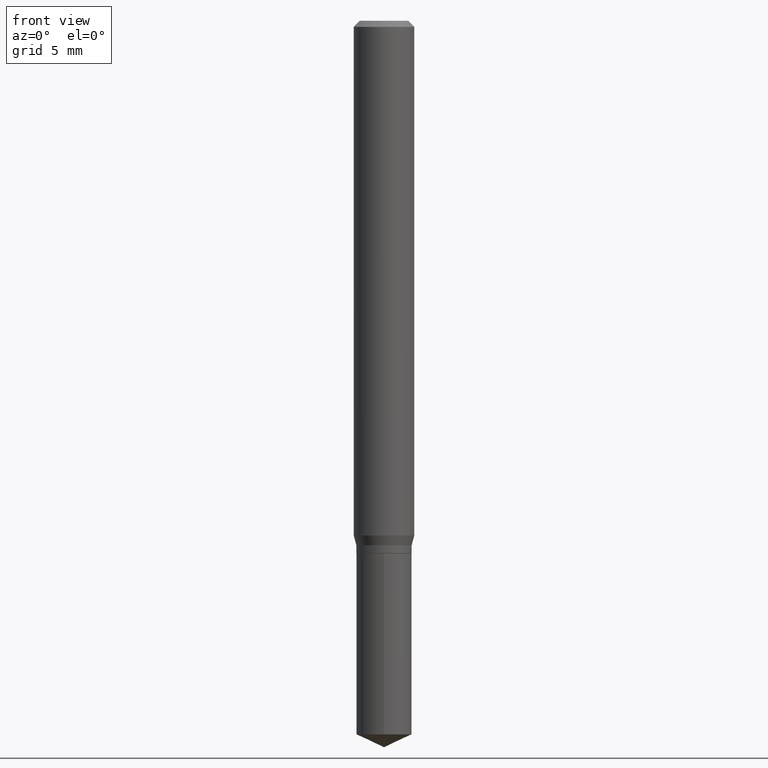
[diagram: clean part render]
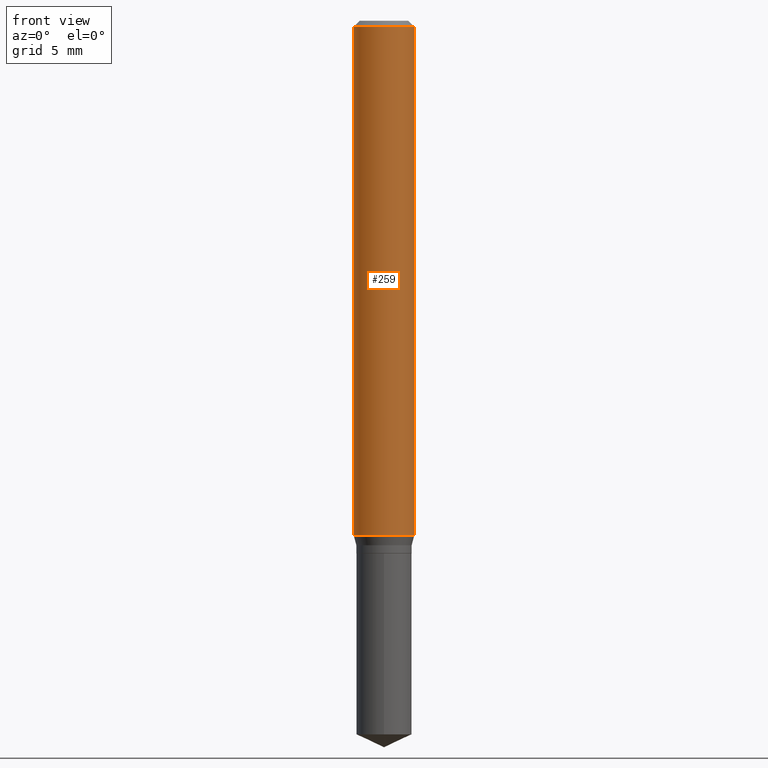
[diagram: same view with one face highlighted and labeled with its STEP entity id]
A machine part, front view. The second image highlights one B-rep face of the part: STEP entity #259.
In plain terms, the highlighted cylindrical surface (edge-blend (fillet) strip) has radius 1.5875 mm, axis along (-0, 0, 1).
Its self-contained STEP definition (entity closure, byte-faithful):
#6 = CIRCLE ( 'NONE', #275, 0.06250000000000012490 ) ;
#9 = CARTESIAN_POINT ( 'NONE',  ( -0.06250000000000012490, -3.266471848931874513E-15, -1.062746925639127760 ) ) ;
#21 = ORIENTED_EDGE ( 'NONE', *, *, #147, .F. ) ;
#32 = AXIS2_PLACEMENT_3D ( 'NONE', #265, #50, #313 ) ;
#50 = DIRECTION ( 'NONE',  ( -2.445468806185136597E-29, 3.491481338843145583E-15, 1.000000000000000000 ) ) ;
#63 = CARTESIAN_POINT ( 'NONE',  ( 2.598914455519641548E-29, -3.710561058781938706E-15, -1.062746925639127760 ) ) ;
#79 = LINE ( 'NONE', #460, #162 ) ;
#80 = DIRECTION ( 'NONE',  ( -2.445468806185136877E-29, 3.491481338843145188E-15, 1.000000000000000000 ) ) ;
#91 = CIRCLE ( 'NONE', #32, 0.06250000000000000000 ) ;
#97 = VERTEX_POINT ( 'NONE', #349 ) ;
#125 = DIRECTION ( 'NONE',  ( 1.000000000000000000, -6.982962677686266711E-15, 4.876176775795935793E-29 ) ) ;
#147 = EDGE_CURVE ( 'NONE', #326, #474, #91, .T. ) ;
#158 = CYLINDRICAL_SURFACE ( 'NONE', #219, 0.06250000000000006939 ) ;
#162 = VECTOR ( 'NONE', #80, 39.37007874015748143 ) ;
#164 = CARTESIAN_POINT ( 'NONE',  ( 0.000000000000000000, 0.000000000000000000, 0.000000000000000000 ) ) ;
#204 = VECTOR ( 'NONE', #483, 39.37007874015748143 ) ;
#219 = AXIS2_PLACEMENT_3D ( 'NONE', #164, #469, #125 ) ;
#259 = ADVANCED_FACE ( 'NONE', ( #353 ), #158, .T. ) ;
#265 = CARTESIAN_POINT ( 'NONE',  ( 3.056836007731440977E-31, -4.364351673553961068E-17, -0.01250000000000008223 ) ) ;
#273 = EDGE_CURVE ( 'NONE', #97, #474, #79, .T. ) ;
#275 = AXIS2_PLACEMENT_3D ( 'NONE', #63, #332, #398 ) ;
#288 = ORIENTED_EDGE ( 'NONE', *, *, #385, .T. ) ;
#298 = VERTEX_POINT ( 'NONE', #9 ) ;
#313 = DIRECTION ( 'NONE',  ( 1.000000000000000000, -6.982962677686266711E-15, 0.000000000000000000 ) ) ;
#326 = VERTEX_POINT ( 'NONE', #470 ) ;
#329 = EDGE_LOOP ( 'NONE', ( #361, #288, #372, #21 ) ) ;
#332 = DIRECTION ( 'NONE',  ( -2.445468806185136597E-29, 3.491481338843145583E-15, 1.000000000000000000 ) ) ;
#349 = CARTESIAN_POINT ( 'NONE',  ( 0.06250000000000012490, -4.146996226137331165E-15, -1.062746925639127760 ) ) ;
#353 = FACE_OUTER_BOUND ( 'NONE', #329, .T. ) ;
#359 = EDGE_CURVE ( 'NONE', #298, #326, #368, .T. ) ;
#361 = ORIENTED_EDGE ( 'NONE', *, *, #359, .F. ) ;
#368 = LINE ( 'NONE', #437, #204 ) ;
#372 = ORIENTED_EDGE ( 'NONE', *, *, #273, .T. ) ;
#385 = EDGE_CURVE ( 'NONE', #298, #97, #6, .T. ) ;
#398 = DIRECTION ( 'NONE',  ( 1.000000000000000000, -6.982962677686264344E-15, 0.000000000000000000 ) ) ;
#414 = CARTESIAN_POINT ( 'NONE',  ( 0.06250000000000000000, -4.800786840909312308E-16, -0.01250000000000008223 ) ) ;
#437 = CARTESIAN_POINT ( 'NONE',  ( -0.06250000000000006939, 4.440892098500631092E-16, -3.074334431409319267E-30 ) ) ;
#460 = CARTESIAN_POINT ( 'NONE',  ( 0.06250000000000006939, -4.364351673553921624E-16, 3.047610484872463374E-30 ) ) ;
#469 = DIRECTION ( 'NONE',  ( -2.445468806185136597E-29, 3.491481338843145583E-15, 1.000000000000000000 ) ) ;
#470 = CARTESIAN_POINT ( 'NONE',  ( -0.06250000000000000000, -1.433013077908675137E-15, -0.01250000000000008223 ) ) ;
#474 = VERTEX_POINT ( 'NONE', #414 ) ;
#483 = DIRECTION ( 'NONE',  ( -2.445468806185136877E-29, 3.491481338843145188E-15, 1.000000000000000000 ) ) ;